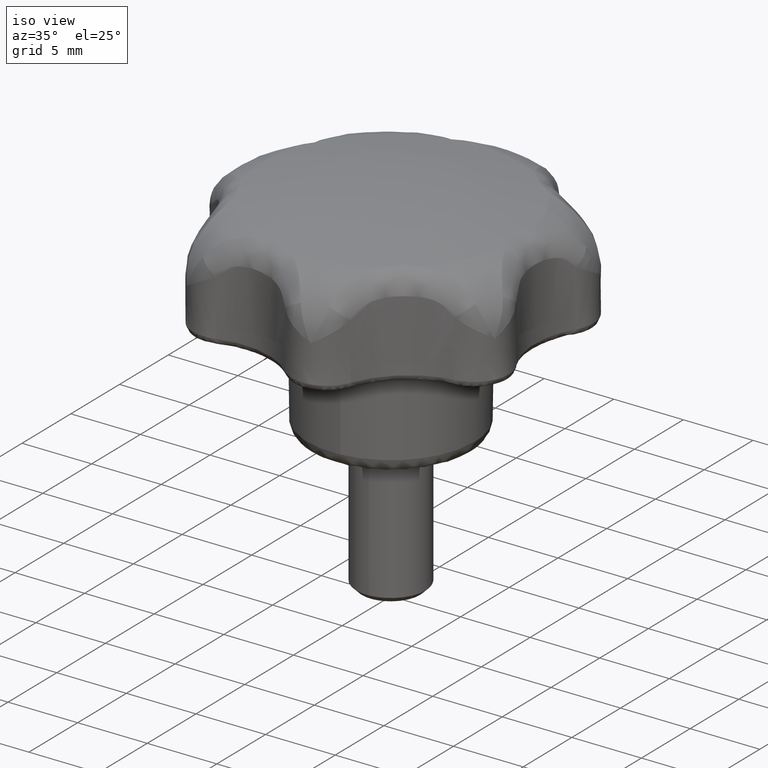
[diagram: clean part render]
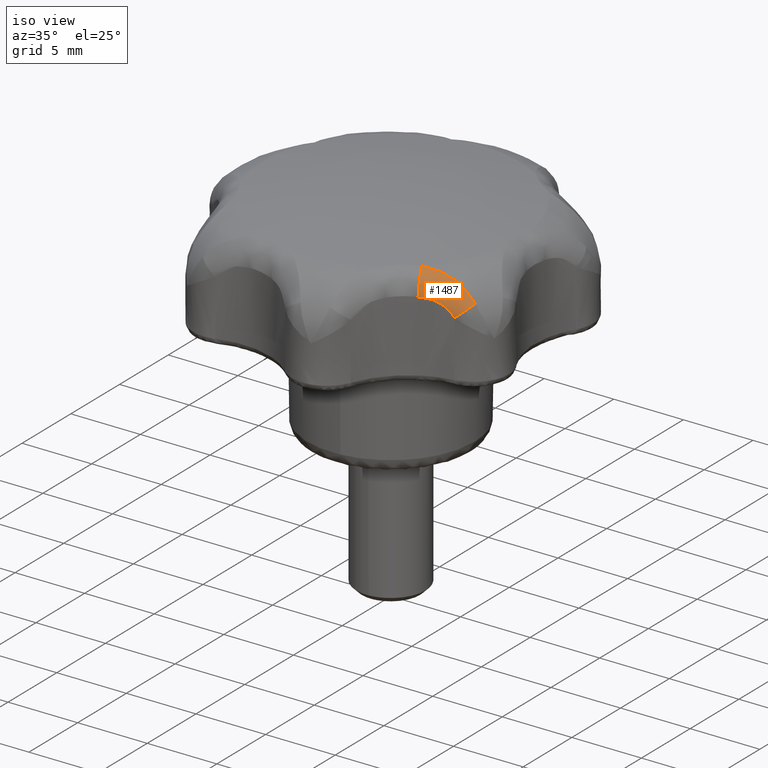
[diagram: same view with one face highlighted and labeled with its STEP entity id]
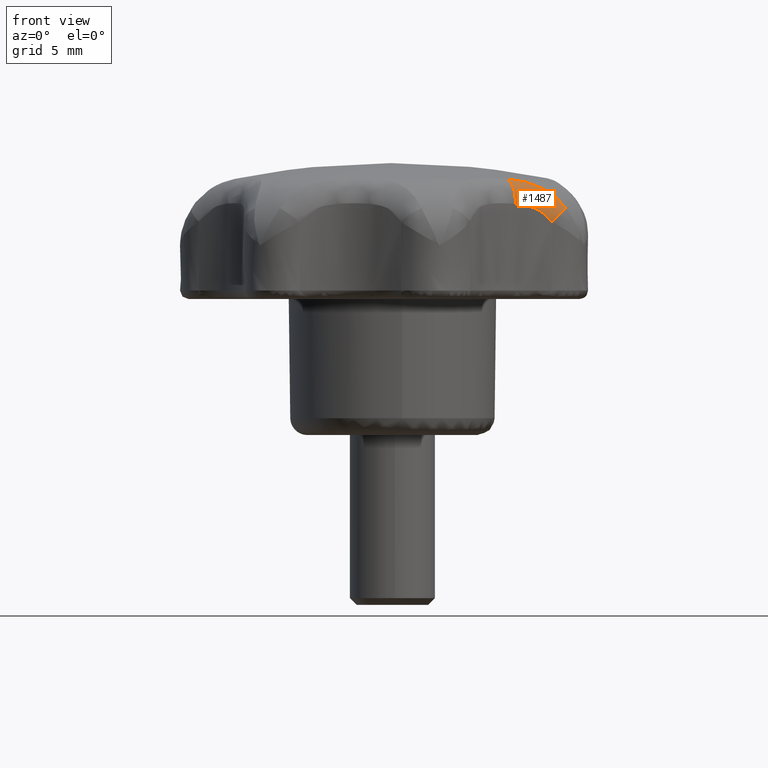
[diagram: same view with one face highlighted and labeled with its STEP entity id]
A machine part, iso view. The second image highlights one B-rep face of the part: STEP entity #1487.
A second angle (front view) of the same face is appended — the face is thin or edge-on in the first view.
In plain terms, the highlighted face is a freeform B-spline surface patch.
Its self-contained STEP definition (entity closure, byte-faithful):
#1281=CARTESIAN_POINT('',(10.228219990321440,-5.959527276377060,5.355914806201170));
#1282=VERTEX_POINT('',#1281);
#1283=CARTESIAN_POINT('',(9.352328902325711,-6.815245265479380,4.529263871044691));
#1284=VERTEX_POINT('',#1283);
#1285=CARTESIAN_POINT('',(10.228219990321440,-5.959527276377059,5.355914806201168));
#1286=CARTESIAN_POINT('',(9.996324922378664,-6.726140794369989,5.074931248965400));
#1287=CARTESIAN_POINT('',(9.352328902325711,-6.815245265479380,4.529263871044691));
#1295=(BOUNDED_CURVE()B_SPLINE_CURVE(2,(#1285,#1286,#1287),.UNSPECIFIED.,.F.,.U.)CURVE()GEOMETRIC_REPRESENTATION_ITEM()QUASI_UNIFORM_CURVE()RATIONAL_B_SPLINE_CURVE((1.0,0.870326250299742,1.0))REPRESENTATION_ITEM(''));
#1296=EDGE_CURVE('',#1282,#1284,#1295,.T.);
#1344=CARTESIAN_POINT('',(7.217171001283551,-7.538147504853819,5.593499763872140));
#1345=CARTESIAN_POINT('',(7.220726580337662,-7.536142776136707,5.593205452069207));
#1346=CARTESIAN_POINT('',(7.224282170820827,-7.534138040975598,5.592911139320239));
#1347=CARTESIAN_POINT('',(7.405632453857815,-7.431887995419684,5.577899933564272));
#1348=CARTESIAN_POINT('',(7.591923977613273,-7.339097263575765,5.555075299812669));
#1349=CARTESIAN_POINT('',(7.966905604600304,-7.175827478271128,5.478473450682600));
#1350=CARTESIAN_POINT('',(8.155685161591723,-7.105067569638701,5.424954152047700));
#1351=CARTESIAN_POINT('',(8.531663197566013,-6.984585142846007,5.266416196846997));
#1352=CARTESIAN_POINT('',(8.714744184708026,-6.936352457113070,5.162510275455868));
#1353=CARTESIAN_POINT('',(9.054165997352333,-6.861616123015222,4.893346682996786));
#1354=CARTESIAN_POINT('',(9.213489866233434,-6.834583594074735,4.724808588513309));
#1355=CARTESIAN_POINT('',(9.349364696991255,-6.815652631431832,4.520488248888391));
#1356=CARTESIAN_POINT('',(9.352028976176934,-6.815281426776397,4.516481867242610));
#1357=CARTESIAN_POINT('',(9.354693258866996,-6.814910221632700,4.512475480327125));
#1358=CARTESIAN_POINT('',(7.217407685875883,-7.538013426210295,5.598281536036685));
#1359=CARTESIAN_POINT('',(7.220965179745067,-7.536007837752460,5.597985622361349));
#1360=CARTESIAN_POINT('',(7.224522679338421,-7.534002246067530,5.597689708209866));
#1361=CARTESIAN_POINT('',(7.405962761373599,-7.431712783962791,5.582597454082810));
#1362=CARTESIAN_POINT('',(7.592378847127330,-7.338874624198532,5.559667713043636));
#1363=CARTESIAN_POINT('',(7.967688083499651,-7.175512355898925,5.482806238016267));
#1364=CARTESIAN_POINT('',(8.156672141351825,-7.104707797285068,5.429131683843105));
#1365=CARTESIAN_POINT('',(8.533128914818368,-6.984161163989674,5.270212793904335));
#1366=CARTESIAN_POINT('',(8.716479043932836,-6.935911089710280,5.166084710307637));
#1367=CARTESIAN_POINT('',(9.056448823845395,-6.861176713556518,4.896394361468425));
#1368=CARTESIAN_POINT('',(9.216054931160338,-6.834164458623782,4.727546859938892));
#1369=CARTESIAN_POINT('',(9.352182028572123,-6.815264105801606,4.522864222852407));
#1370=CARTESIAN_POINT('',(9.354851208676005,-6.814893507686543,4.518850805737742));
#1371=CARTESIAN_POINT('',(9.357520390536450,-6.814522909327596,4.514837385981886));
#1372=CARTESIAN_POINT('',(7.278944221812996,-7.503153804870538,6.841512841240760));
#1373=CARTESIAN_POINT('',(7.282986562776395,-7.500932037244043,6.840540144505364));
#1374=CARTESIAN_POINT('',(7.287027223752816,-7.498711192978718,6.839567852020345));
#1375=CARTESIAN_POINT('',(7.490897561082815,-7.386659161845357,6.790511126385278));
#1376=CARTESIAN_POINT('',(7.707839338621324,-7.282361599855958,6.725369683389120));
#1377=CARTESIAN_POINT('',(8.161173079940824,-7.097591467406252,6.554182530123393));
#1378=CARTESIAN_POINT('',(8.397528050014866,-7.016911369590090,6.448588472339583));
#1379=CARTESIAN_POINT('',(8.882461248478032,-6.883111986144112,6.175076339634662));
#1380=CARTESIAN_POINT('',(9.125762724437157,-6.831784788000327,6.009356504890616));
#1381=CARTESIAN_POINT('',(9.586556845910911,-6.759138963540586,5.604112977579194));
#1382=CARTESIAN_POINT('',(9.808224877412508,-6.737403002466846,5.359703194816286));
#1383=CARTESIAN_POINT('',(10.000072580878014,-6.725916409966854,5.069257517224843));
#1384=CARTESIAN_POINT('',(10.003819549383623,-6.725692065867047,5.063584836307289));
#1385=CARTESIAN_POINT('',(10.007565954117789,-6.725467755522205,5.057913008905186));
#1386=CARTESIAN_POINT('',(6.687873662161650,-6.432282573752102,7.074913674704688));
#1387=CARTESIAN_POINT('',(6.693074643902671,-6.430271927591911,7.074440008275248));
#1388=CARTESIAN_POINT('',(6.698275634042023,-6.428261278185024,7.073966341080958));
#1389=CARTESIAN_POINT('',(6.963537285619952,-6.325713846229335,7.049808298306262));
#1390=CARTESIAN_POINT('',(7.247483137921700,-6.241687957934039,7.013064133424823));
#1391=CARTESIAN_POINT('',(7.840705313355415,-6.108520290488568,6.889893298646072));
#1392=CARTESIAN_POINT('',(8.149999752772063,-6.058853804939671,6.803862957906609));
#1393=CARTESIAN_POINT('',(8.783512649142022,-5.987740377896340,6.549094719819440));
#1394=CARTESIAN_POINT('',(9.100841916902049,-5.967300132898441,6.382144030911756));
#1395=CARTESIAN_POINT('',(9.699856266478394,-5.948285759787199,5.949702137272405));
#1396=CARTESIAN_POINT('',(9.986844171644615,-5.949757212934391,5.678938089435484));
#1397=CARTESIAN_POINT('',(10.234085731493018,-5.956291217105004,5.350711754784771));
#1398=CARTESIAN_POINT('',(10.238933644252716,-5.956419335865501,5.344275892477493));
#1399=CARTESIAN_POINT('',(10.243781560214096,-5.956547454710607,5.337840025919795));
#1400=CARTESIAN_POINT('',(6.685592243875922,-6.428149217474346,7.075814556876322));
#1401=CARTESIAN_POINT('',(6.690797220730167,-6.426138520441476,7.075343005744456));
#1402=CARTESIAN_POINT('',(6.696002214374573,-6.424127816922514,7.074871453091457));
#1403=CARTESIAN_POINT('',(6.961479173738170,-6.321573329278041,7.050820248988322));
#1404=CARTESIAN_POINT('',(7.245663117083920,-6.237573648817000,7.014201535056823));
#1405=CARTESIAN_POINT('',(7.839404727729348,-6.104506246363134,6.891255746435144));
#1406=CARTESIAN_POINT('',(8.148981852533854,-6.054914024986681,6.805323938277402));
#1407=CARTESIAN_POINT('',(8.783096018904603,-5.983970350950819,6.550669551273131));
#1408=CARTESIAN_POINT('',(9.100735910577923,-5.963622850754883,6.383729767459756));
#1409=CARTESIAN_POINT('',(9.700345894513294,-5.944781624825524,5.951195614823273));
#1410=CARTESIAN_POINT('',(9.987620616303493,-5.946333375834418,5.680325779549915));
#1411=CARTESIAN_POINT('',(10.235106922001531,-5.952932713790127,5.351939969503570));
#1412=CARTESIAN_POINT('',(10.239959716954976,-5.953062115834562,5.345500869783362));
#1413=CARTESIAN_POINT('',(10.244812518314063,-5.953191518049809,5.339061761563599));
#1421=(BOUNDED_SURFACE()B_SPLINE_SURFACE(3,2,((#1344,#1358,#1372,#1386,#1400),(#1345,#1359,#1373,#1387,#1401),(#1346,#1360,#1374,#1388,#1402),(#1347,#1361,#1375,#1389,#1403),(#1348,#1362,#1376,#1390,#1404),(#1349,#1363,#1377,#1391,#1405),(#1350,#1364,#1378,#1392,#1406),(#1351,#1365,#1379,#1393,#1407),(#1352,#1366,#1380,#1394,#1408),(#1353,#1367,#1381,#1395,#1409),(#1354,#1368,#1382,#1396,#1410),(#1355,#1369,#1383,#1397,#1411),(#1356,#1370,#1384,#1398,#1412),(#1357,#1371,#1385,#1399,#1413)),.UNSPECIFIED.,.F.,.F.,.U.)B_SPLINE_SURFACE_WITH_KNOTS((4,2,2,2,2,2,4),(3,1,1,3),(0.0,0.024192322028858,1.233808506347750,2.443424690666641,3.653040874985531,4.862657059304423,4.886849157977418),(0.0,0.010857122709137,2.170338958290365,2.181234646337859),.UNSPECIFIED.)GEOMETRIC_REPRESENTATION_ITEM()RATIONAL_B_SPLINE_SURFACE(((1.002306308007962,1.001153154003981,0.770637654935173,1.001157250096061,1.002314500192122),(1.002304697106709,1.001152348553354,0.770797859074318,1.001156441784412,1.002312883568823),(1.002303086205456,1.001151543102728,0.770958063213463,1.001155633472762,1.002311266945525),(1.002220930236043,1.001110465118021,0.779128474858670,1.001114409575882,1.002228819151763),(1.002119680586153,1.001059840293077,0.789197753140455,1.001063604927649,1.002127209855298),(1.001910841155558,1.000955420577779,0.809966835751252,1.000958814305458,1.001917628610917),(1.001803639235279,1.000901819617640,0.820628067358505,1.000905022950569,1.001810045901138),(1.001608017281978,1.000804008640989,0.840082671774065,1.000806864541775,1.001613729083551),(1.001522173087761,1.000761086543881,0.848619877397890,1.000763789982063,1.001527579964126),(1.001387309266770,1.000693654633385,0.862032085194959,1.000696118548214,1.001392237096428),(1.001336835148642,1.000668417574321,0.867051736542099,1.000670791845167,1.001341583690333),(1.001303250371530,1.000651625185765,0.870391742824959,1.000653939808750,1.001307879617500),(1.001302591852493,1.000651295926247,0.870457232547047,1.000653609379676,1.001307218759353),(1.001301933333457,1.000650966666729,0.870522722269135,1.000653278950603,1.001306557901206)))REPRESENTATION_ITEM('')SURFACE());
#1422=CARTESIAN_POINT('',(6.705751281888560,-6.430393691127960,7.072583351951930));
#1423=VERTEX_POINT('',#1422);
#1424=CARTESIAN_POINT('',(7.228323154483910,-7.531859688448060,5.602181755613060));
#1425=VERTEX_POINT('',#1424);
#1426=CARTESIAN_POINT('',(6.705751281888564,-6.430393691127960,7.072583351951940));
#1427=CARTESIAN_POINT('',(7.291066205789340,-7.496491271499066,6.838595963533783));
#1428=CARTESIAN_POINT('',(7.228323154483912,-7.531859688448057,5.602181755613050));
#1436=(BOUNDED_CURVE()B_SPLINE_CURVE(2,(#1426,#1427,#1428),.UNSPECIFIED.,.F.,.U.)CURVE()GEOMETRIC_REPRESENTATION_ITEM()QUASI_UNIFORM_CURVE()RATIONAL_B_SPLINE_CURVE((1.0,0.771118267352600,1.0))REPRESENTATION_ITEM(''));
#1437=EDGE_CURVE('',#1423,#1425,#1436,.T.);
#1438=ORIENTED_EDGE('',*,*,#1437,.T.);
#1439=CARTESIAN_POINT('',(9.352328902325711,-6.815245265479380,4.529263871044691));
#1440=CARTESIAN_POINT('',(9.231726878122949,-6.831931750824026,4.710587859803886));
#1441=CARTESIAN_POINT('',(9.088493858250363,-6.855343513871315,4.869634969981575));
#1442=CARTESIAN_POINT('',(8.882117092742400,-6.899349992789642,5.040415563436484));
#1443=CARTESIAN_POINT('',(8.839307908005837,-6.908939601489816,5.073255298817595));
#1444=CARTESIAN_POINT('',(8.752364488465759,-6.929469035929506,5.135106001774219));
#1445=CARTESIAN_POINT('',(8.619597241947103,-6.962355733786815,5.222492042457050));
#1446=CARTESIAN_POINT('',(8.480401390634899,-7.001941231082210,5.294640455228734));
#1447=CARTESIAN_POINT('',(8.290135622189576,-7.061390004140926,5.378835849224731));
#1448=CARTESIAN_POINT('',(8.192172584912637,-7.094659527593313,5.415024819690480));
#1449=CARTESIAN_POINT('',(7.997420612490962,-7.166631767255672,5.475694393833916));
#1450=CARTESIAN_POINT('',(7.900132508834723,-7.205460456293839,5.500463178935267));
#1451=CARTESIAN_POINT('',(7.706315155494604,-7.288854992439655,5.541537383512058));
#1452=CARTESIAN_POINT('',(7.609784988865734,-7.333420332629392,5.557839501411896));
#1453=CARTESIAN_POINT('',(7.417969923607048,-7.428325965818433,5.584218346163751));
#1454=CARTESIAN_POINT('',(7.322427377524405,-7.478812899554172,5.594315695242823));
#1455=CARTESIAN_POINT('',(7.228323154483906,-7.531859688448057,5.602181755613054));
#1456=B_SPLINE_CURVE_WITH_KNOTS('',3,(#1439,#1440,#1441,#1442,#1443,#1444,#1445,#1446,#1447,#1448,#1449,#1450,#1451,#1452,#1453,#1454,#1455),.UNSPECIFIED.,.F.,.U.,(4,2,2,1,2,2,2,2,4),(0.0,0.250000000000002,0.312500000000002,0.375000000000002,0.500000000000001,0.625000000000001,0.750000000000001,0.875000000000000,1.0),.UNSPECIFIED.);
#1457=EDGE_CURVE('',#1284,#1425,#1456,.T.);
#1458=ORIENTED_EDGE('',*,*,#1457,.F.);
#1459=ORIENTED_EDGE('',*,*,#1296,.F.);
#1460=CARTESIAN_POINT('',(6.705751281888560,-6.430393691127960,7.072583351951930));
#1461=CARTESIAN_POINT('',(6.864139623400935,-6.369116511088663,7.058082831607878));
#1462=CARTESIAN_POINT('',(7.025208817483930,-6.316093335600683,7.039222414281539));
#1463=CARTESIAN_POINT('',(7.269713401703170,-6.246632067752348,7.001964766613280));
#1464=CARTESIAN_POINT('',(7.351798353810549,-6.225145724087595,6.988022373613886));
#1465=CARTESIAN_POINT('',(7.515291561232321,-6.185549189505582,6.957015531304450));
#1466=CARTESIAN_POINT('',(7.596871333204009,-6.167385875328367,6.939928866724981));
#1467=CARTESIAN_POINT('',(7.840877876109728,-6.117214051399018,6.883468676096402));
#1468=CARTESIAN_POINT('',(8.002568740617440,-6.089499718238655,6.838898694182378));
#1469=CARTESIAN_POINT('',(8.242795612884226,-6.054697769997597,6.759844436419384));
#1470=CARTESIAN_POINT('',(8.322487338126797,-6.044231849411720,6.731459344461391));
#1471=CARTESIAN_POINT('',(8.480968776312396,-6.025330064268404,6.670300496114252));
#1472=CARTESIAN_POINT('',(8.560005683049864,-6.016871929273576,6.637412624101462));
#1473=CARTESIAN_POINT('',(8.949284680227169,-5.979448059343710,6.462647612839981));
#1474=CARTESIAN_POINT('',(9.240252469209455,-5.964788744311212,6.291042832497745));
#1475=CARTESIAN_POINT('',(9.574778242377770,-5.956768254960961,6.031995322867396));
#1476=CARTESIAN_POINT('',(9.640214839014881,-5.955697241187708,5.977943420848424));
#1477=CARTESIAN_POINT('',(9.768008500452714,-5.954458843809228,5.865152591863424));
#1478=CARTESIAN_POINT('',(9.830484411349502,-5.954292154046446,5.806293419118092));
#1479=CARTESIAN_POINT('',(10.012225064014590,-5.954918374633282,5.623114636141142));
#1480=CARTESIAN_POINT('',(10.124695284194200,-5.956816119924545,5.493418738906410));
#1481=CARTESIAN_POINT('',(10.228219990321440,-5.959527276377060,5.355914806201170));
#1482=B_SPLINE_CURVE_WITH_KNOTS('',3,(#1460,#1461,#1462,#1463,#1464,#1465,#1466,#1467,#1468,#1469,#1470,#1471,#1472,#1473,#1474,#1475,#1476,#1477,#1478,#1479,#1480,#1481),.UNSPECIFIED.,.F.,.U.,(4,2,2,2,2,2,2,2,2,2,4),(0.0,0.125000000000000,0.187500000000000,0.249999999999999,0.375000000000000,0.437500000000000,0.499999999999999,0.750000000000000,0.812500000000000,0.875000000000000,1.0),.UNSPECIFIED.);
#1483=EDGE_CURVE('',#1423,#1282,#1482,.T.);
#1484=ORIENTED_EDGE('',*,*,#1483,.F.);
#1485=EDGE_LOOP('',(#1438,#1458,#1459,#1484));
#1486=FACE_OUTER_BOUND('',#1485,.T.);
#1487=ADVANCED_FACE('',(#1486),#1421,.T.);